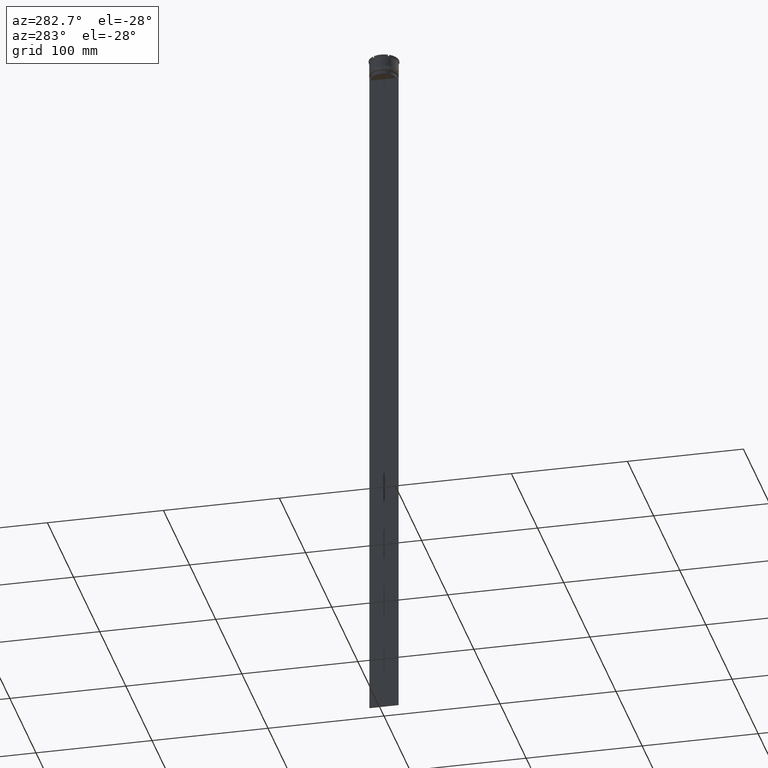
[diagram: clean part render]
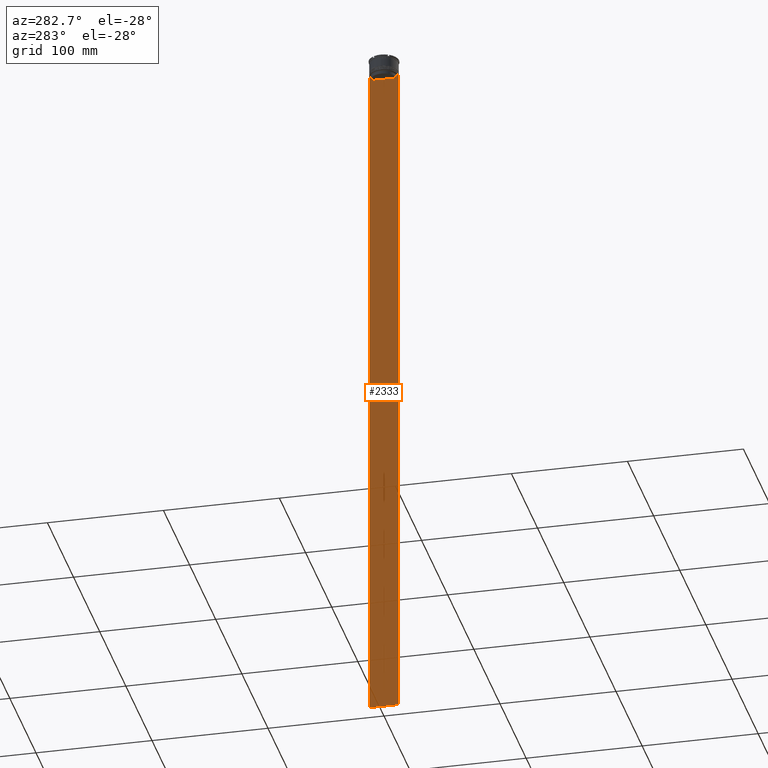
[diagram: same view with one face highlighted and labeled with its STEP entity id]
A machine part, auxiliary view. The second image highlights one B-rep face of the part: STEP entity #2333.
In plain terms, the highlighted planar face has unit normal (-1, 0, 0).
Its self-contained STEP definition (entity closure, byte-faithful):
#11 = CARTESIAN_POINT ( 'NONE',  ( -0.5000000000000000000, -11.22219891450652973, -14.16667035398018903 ) ) ;
#27 = DIRECTION ( 'NONE',  ( -0.000000000000000000, -0.000000000000000000, 1.000000000000000000 ) ) ;
#47 = DIRECTION ( 'NONE',  ( 0.000000000000000000, 0.000000000000000000, 1.000000000000000000 ) ) ;
#70 = EDGE_CURVE ( 'NONE', #1257, #2409, #1763, .T. ) ;
#110 = VECTOR ( 'NONE', #2876, 1000.000000000000000 ) ;
#119 = LINE ( 'NONE', #945, #2122 ) ;
#172 = ORIENTED_EDGE ( 'NONE', *, *, #70, .F. ) ;
#227 = CARTESIAN_POINT ( 'NONE',  ( -0.5000000000000000000, -12.49999999999999289, -14.00000000000000178 ) ) ;
#242 = CARTESIAN_POINT ( 'NONE',  ( -0.5000000000000000000, -11.38902980942626719, -14.00000000000000178 ) ) ;
#251 = CARTESIAN_POINT ( 'NONE',  ( -0.5000000000000000000, 10.90000000000000213, -17.00000000000000000 ) ) ;
#281 = EDGE_CURVE ( 'NONE', #1060, #461, #2547, .T. ) ;
#336 = LINE ( 'NONE', #814, #2344 ) ;
#361 = CARTESIAN_POINT ( 'NONE',  ( -0.5000000000000000000, 11.38902980942626719, -14.00000000000000178 ) ) ;
#371 = DIRECTION ( 'NONE',  ( 0.000000000000000000, -1.000000000000000000, 0.000000000000000000 ) ) ;
#423 = CARTESIAN_POINT ( 'NONE',  ( -0.5000000000000000000, 10.88852607105296322, -14.50000000000000000 ) ) ;
#451 = CARTESIAN_POINT ( 'NONE',  ( -0.5000000000000000000, -10.88852607105296322, 0.000000000000000000 ) ) ;
#461 = VERTEX_POINT ( 'NONE', #1266 ) ;
#478 = VERTEX_POINT ( 'NONE', #828 ) ;
#496 = VERTEX_POINT ( 'NONE', #1561 ) ;
#536 = CARTESIAN_POINT ( 'NONE',  ( -0.5000000000000000000, 12.50000000000000711, 11.01999200639360765 ) ) ;
#587 = CARTESIAN_POINT ( 'NONE',  ( -0.5000000000000000000, -12.49999999999999289, -14.00000000000000178 ) ) ;
#600 = CARTESIAN_POINT ( 'NONE',  ( -0.5000000000000000000, 10.88852607105296144, -17.00000000000000000 ) ) ;
#611 = CARTESIAN_POINT ( 'NONE',  ( -0.5000000000000000000, -10.88852607105296144, -17.00000000000000000 ) ) ;
#700 = LINE ( 'NONE', #227, #2007 ) ;
#731 = ORIENTED_EDGE ( 'NONE', *, *, #2749, .F. ) ;
#776 = CARTESIAN_POINT ( 'NONE',  ( -0.5000000000000000000, 12.50000000000000711, -14.00000000000000178 ) ) ;
#797 = DIRECTION ( 'NONE',  ( 0.000000000000000000, 1.000000000000000000, 0.000000000000000000 ) ) ;
#814 = CARTESIAN_POINT ( 'NONE',  ( -0.5000000000000000000, -12.49999999999999289, -14.00000000000000178 ) ) ;
#821 = B_SPLINE_CURVE_WITH_KNOTS ( 'NONE', 3,
 ( #361, #1727, #1714, #2181 ),
 .UNSPECIFIED., .F., .F.,
 ( 4, 4 ),
 ( 0.01935560801904634073, 0.02006307108468586772 ),
 .UNSPECIFIED. ) ;
#828 = CARTESIAN_POINT ( 'NONE',  ( -0.5000000000000000000, -12.49999999999999289, -14.00000000000000178 ) ) ;
#945 = CARTESIAN_POINT ( 'NONE',  ( -0.5000000000000000000, -12.49999999999999289, 11.01999200639360765 ) ) ;
#946 = VECTOR ( 'NONE', #371, 1000.000000000000000 ) ;
#967 = ORIENTED_EDGE ( 'NONE', *, *, #2183, .F. ) ;
#997 = VERTEX_POINT ( 'NONE', #2000 ) ;
#1038 = ORIENTED_EDGE ( 'NONE', *, *, #2565, .F. ) ;
#1057 = DIRECTION ( 'NONE',  ( 0.000000000000000000, -1.000000000000000000, 0.000000000000000000 ) ) ;
#1060 = VERTEX_POINT ( 'NONE', #776 ) ;
#1076 = VECTOR ( 'NONE', #1057, 1000.000000000000000 ) ;
#1105 = B_SPLINE_CURVE_WITH_KNOTS ( 'NONE', 3,
 ( #2236, #1534, #11, #242 ),
 .UNSPECIFIED., .F., .F.,
 ( 4, 4 ),
 ( 0.05041323384703226551, 0.05112713601261605068 ),
 .UNSPECIFIED. ) ;
#1126 = VECTOR ( 'NONE', #797, 1000.000000000000000 ) ;
#1160 = FACE_OUTER_BOUND ( 'NONE', #2644, .T. ) ;
#1257 = VERTEX_POINT ( 'NONE', #611 ) ;
#1266 = CARTESIAN_POINT ( 'NONE',  ( -0.5000000000000000000, 12.50000000000000711, -614.0000000000000000 ) ) ;
#1366 = VECTOR ( 'NONE', #2504, 1000.000000000000000 ) ;
#1368 = EDGE_CURVE ( 'NONE', #1060, #2024, #700, .T. ) ;
#1483 = CARTESIAN_POINT ( 'NONE',  ( -0.5000000000000000000, 12.38991525394746773, -14.00000000000000178 ) ) ;
#1498 = CARTESIAN_POINT ( 'NONE',  ( -0.5000000000000000000, -12.49999999999999289, -14.00000000000000178 ) ) ;
#1526 = ORIENTED_EDGE ( 'NONE', *, *, #2142, .F. ) ;
#1534 = CARTESIAN_POINT ( 'NONE',  ( -0.5000000000000000000, -11.05536450423839234, -14.33333718996393102 ) ) ;
#1538 = LINE ( 'NONE', #1787, #2018 ) ;
#1561 = CARTESIAN_POINT ( 'NONE',  ( -0.5000000000000000000, -12.49999999999999289, -614.0000000000000000 ) ) ;
#1577 = DIRECTION ( 'NONE',  ( 0.000000000000000000, -1.000000000000000000, 0.000000000000000000 ) ) ;
#1598 = PLANE ( 'NONE',  #2768 ) ;
#1621 = VERTEX_POINT ( 'NONE', #2793 ) ;
#1702 = DIRECTION ( 'NONE',  ( 0.000000000000000000, -1.000000000000000000, 0.000000000000000000 ) ) ;
#1714 = CARTESIAN_POINT ( 'NONE',  ( -0.5000000000000000000, 11.05536450345590538, -14.33333719074559376 ) ) ;
#1724 = ORIENTED_EDGE ( 'NONE', *, *, #1368, .F. ) ;
#1727 = CARTESIAN_POINT ( 'NONE',  ( -0.5000000000000000000, 11.22219891375843304, -14.16667035472756808 ) ) ;
#1760 = ORIENTED_EDGE ( 'NONE', *, *, #2147, .F. ) ;
#1763 = LINE ( 'NONE', #451, #1830 ) ;
#1782 = CARTESIAN_POINT ( 'NONE',  ( -0.5000000000000000000, -10.88852607105296322, -14.50000000000000000 ) ) ;
#1786 = ORIENTED_EDGE ( 'NONE', *, *, #2515, .F. ) ;
#1787 = CARTESIAN_POINT ( 'NONE',  ( -0.5000000000000000000, 10.88852607105296322, 0.000000000000000000 ) ) ;
#1793 = CARTESIAN_POINT ( 'NONE',  ( -0.5000000000000000000, -11.38902980942626719, -14.00000000000000178 ) ) ;
#1801 = VERTEX_POINT ( 'NONE', #1793 ) ;
#1830 = VECTOR ( 'NONE', #27, 1000.000000000000000 ) ;
#1845 = DIRECTION ( 'NONE',  ( -1.000000000000000000, 0.000000000000000000, 0.000000000000000000 ) ) ;
#1935 = LINE ( 'NONE', #1498, #1076 ) ;
#1960 = CARTESIAN_POINT ( 'NONE',  ( -0.5000000000000000000, -12.49999999999999289, -614.0000000000000000 ) ) ;
#1999 = ORIENTED_EDGE ( 'NONE', *, *, #281, .T. ) ;
#2000 = CARTESIAN_POINT ( 'NONE',  ( -0.5000000000000000000, 11.38902980942626719, -14.00000000000000178 ) ) ;
#2007 = VECTOR ( 'NONE', #1577, 1000.000000000000000 ) ;
#2018 = VECTOR ( 'NONE', #2025, 1000.000000000000000 ) ;
#2024 = VERTEX_POINT ( 'NONE', #1483 ) ;
#2025 = DIRECTION ( 'NONE',  ( 0.000000000000000000, 0.000000000000000000, -1.000000000000000000 ) ) ;
#2083 = DIRECTION ( 'NONE',  ( 0.000000000000000000, 0.000000000000000000, -1.000000000000000000 ) ) ;
#2102 = ORIENTED_EDGE ( 'NONE', *, *, #2405, .F. ) ;
#2117 = VERTEX_POINT ( 'NONE', #600 ) ;
#2122 = VECTOR ( 'NONE', #2083, 1000.000000000000000 ) ;
#2142 = EDGE_CURVE ( 'NONE', #2024, #997, #336, .T. ) ;
#2147 = EDGE_CURVE ( 'NONE', #1801, #1621, #2598, .T. ) ;
#2167 = ORIENTED_EDGE ( 'NONE', *, *, #2615, .F. ) ;
#2181 = CARTESIAN_POINT ( 'NONE',  ( -0.5000000000000000000, 10.88852607105296322, -14.50000000000000000 ) ) ;
#2183 = EDGE_CURVE ( 'NONE', #2397, #2117, #1538, .T. ) ;
#2236 = CARTESIAN_POINT ( 'NONE',  ( -0.5000000000000000000, -10.88852607105296322, -14.50000000000000000 ) ) ;
#2243 = LINE ( 'NONE', #251, #110 ) ;
#2271 = CARTESIAN_POINT ( 'NONE',  ( -0.5000000000000000000, -12.49999999999999289, 11.01999200639360765 ) ) ;
#2333 = ADVANCED_FACE ( 'NONE', ( #1160 ), #1598, .T. ) ;
#2344 = VECTOR ( 'NONE', #1702, 1000.000000000000000 ) ;
#2397 = VERTEX_POINT ( 'NONE', #423 ) ;
#2405 = EDGE_CURVE ( 'NONE', #2409, #1801, #1105, .T. ) ;
#2409 = VERTEX_POINT ( 'NONE', #1782 ) ;
#2504 = DIRECTION ( 'NONE',  ( 0.000000000000000000, 0.000000000000000000, -1.000000000000000000 ) ) ;
#2515 = EDGE_CURVE ( 'NONE', #1621, #478, #1935, .T. ) ;
#2547 = LINE ( 'NONE', #536, #1366 ) ;
#2560 = ORIENTED_EDGE ( 'NONE', *, *, #2869, .F. ) ;
#2565 = EDGE_CURVE ( 'NONE', #496, #461, #2823, .T. ) ;
#2598 = LINE ( 'NONE', #587, #946 ) ;
#2615 = EDGE_CURVE ( 'NONE', #997, #2397, #821, .T. ) ;
#2644 = EDGE_LOOP ( 'NONE', ( #2167, #1526, #1724, #1999, #1038, #2560, #1786, #1760, #2102, #172, #731, #967 ) ) ;
#2749 = EDGE_CURVE ( 'NONE', #2117, #1257, #2243, .T. ) ;
#2768 = AXIS2_PLACEMENT_3D ( 'NONE', #2271, #1845, #47 ) ;
#2793 = CARTESIAN_POINT ( 'NONE',  ( -0.5000000000000000000, -12.38991525394746773, -14.00000000000000178 ) ) ;
#2823 = LINE ( 'NONE', #1960, #1126 ) ;
#2869 = EDGE_CURVE ( 'NONE', #478, #496, #119, .T. ) ;
#2876 = DIRECTION ( 'NONE',  ( 0.000000000000000000, -1.000000000000000000, 0.000000000000000000 ) ) ;